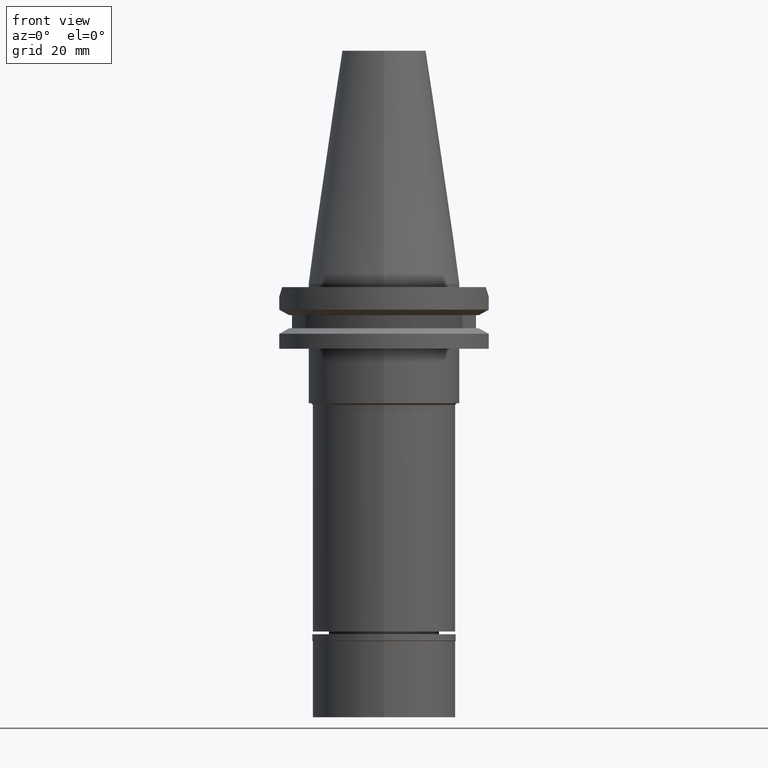
[diagram: clean part render]
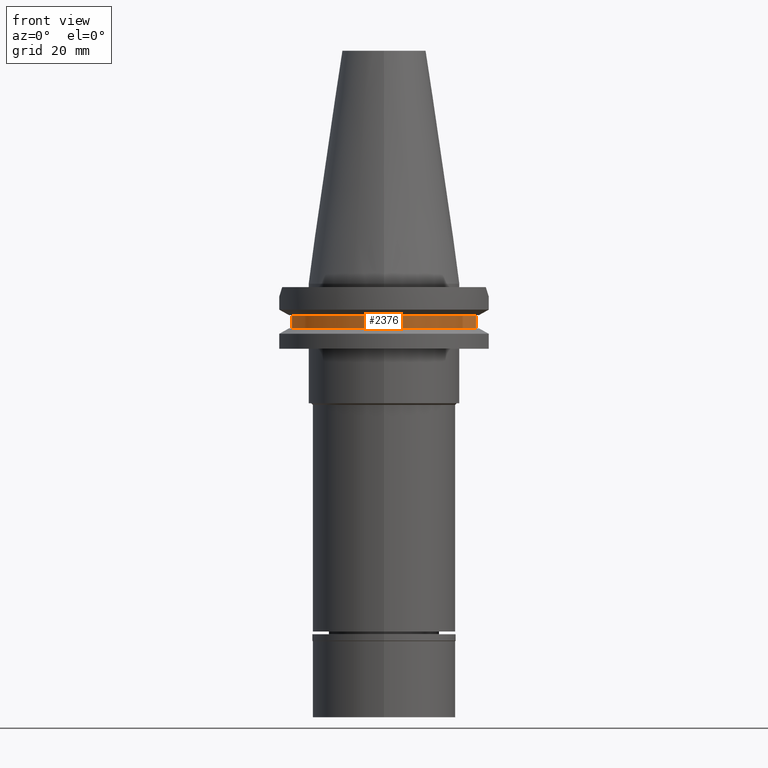
[diagram: same view with one face highlighted and labeled with its STEP entity id]
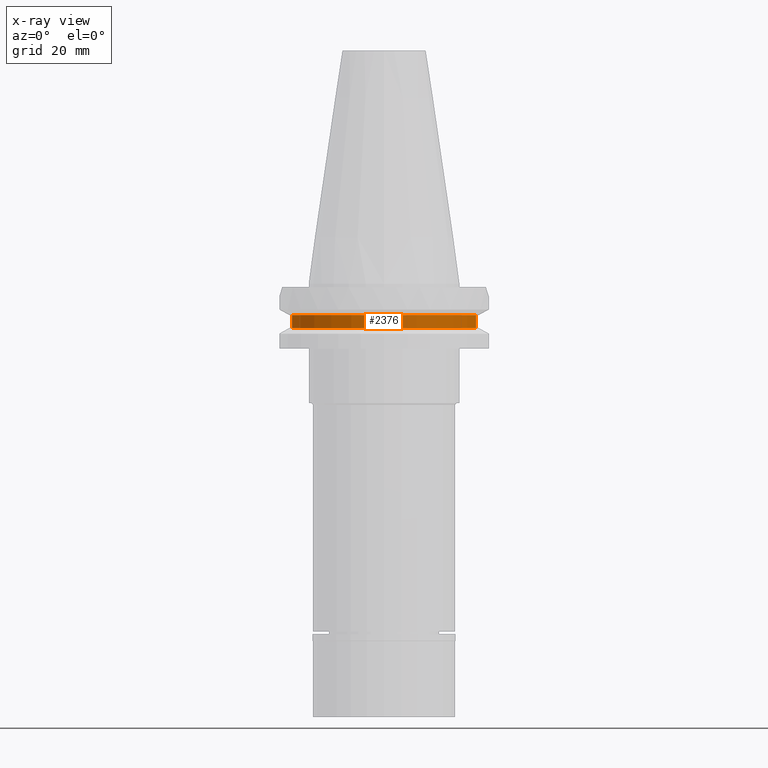
[diagram: x-ray of the same camera — body ghosted, the highlighted face saturated]
A machine part, front view. The second image highlights one B-rep face of the part: STEP entity #2376.
The next image is the same camera in x-ray: the body ghosted, the highlighted face saturated — about 0% of this face is hidden behind the body in this view.
In plain terms, the highlighted cylindrical surface (partial cylindrical patch) has radius 28.18 mm, axis along (0, 0, -1).
Its self-contained STEP definition (entity closure, byte-faithful):
#7 = CARTESIAN_POINT ( 'NONE',  ( 26.96361066326000255, -8.189999999999999503, -9.207499999999999574 ) ) ;
#206 = VERTEX_POINT ( 'NONE', #1682 ) ;
#235 = AXIS2_PLACEMENT_3D ( 'NONE', #2970, #708, #1714 ) ;
#248 = CARTESIAN_POINT ( 'NONE',  ( 0.0000000000000000000, 2.175431957834999696E-14, -9.207499999999999574 ) ) ;
#491 = ORIENTED_EDGE ( 'NONE', *, *, #1583, .T. ) ;
#562 = AXIS2_PLACEMENT_3D ( 'NONE', #2854, #1599, #2608 ) ;
#623 = EDGE_CURVE ( 'NONE', #2875, #3290, #3096, .T. ) ;
#708 = DIRECTION ( 'NONE',  ( 0.0000000000000000000, 0.0000000000000000000, -1.000000000000000000 ) ) ;
#796 = DIRECTION ( 'NONE',  ( 0.0000000000000000000, 0.0000000000000000000, -1.000000000000000000 ) ) ;
#980 = AXIS2_PLACEMENT_3D ( 'NONE', #248, #1319, #1054 ) ;
#1054 = DIRECTION ( 'NONE',  ( 0.0000000000000000000, -1.000000000000000000, 0.0000000000000000000 ) ) ;
#1071 = VERTEX_POINT ( 'NONE', #1719 ) ;
#1110 = CARTESIAN_POINT ( 'NONE',  ( -26.96361066326000255, -8.189999999999999503, -13.04749999999999943 ) ) ;
#1192 = CARTESIAN_POINT ( 'NONE',  ( -26.96361066326000255, -8.189999999999999503, -13.04749999999999943 ) ) ;
#1199 = CYLINDRICAL_SURFACE ( 'NONE', #235, 28.17999999999999972 ) ;
#1251 = VECTOR ( 'NONE', #796, 1000.000000000000000 ) ;
#1274 = EDGE_CURVE ( 'NONE', #1071, #3290, #2400, .T. ) ;
#1319 = DIRECTION ( 'NONE',  ( 0.0000000000000000000, 0.0000000000000000000, -1.000000000000000000 ) ) ;
#1461 = ORIENTED_EDGE ( 'NONE', *, *, #623, .F. ) ;
#1556 = CARTESIAN_POINT ( 'NONE',  ( -26.96361066326000255, -8.189999999999999503, -9.207499999999999574 ) ) ;
#1583 = EDGE_CURVE ( 'NONE', #2875, #206, #2355, .T. ) ;
#1599 = DIRECTION ( 'NONE',  ( 0.0000000000000000000, 0.0000000000000000000, 1.000000000000000000 ) ) ;
#1669 = ORIENTED_EDGE ( 'NONE', *, *, #1274, .T. ) ;
#1682 = CARTESIAN_POINT ( 'NONE',  ( 26.96361066326000255, -8.189999999999999503, -13.04749999999999943 ) ) ;
#1714 = DIRECTION ( 'NONE',  ( 0.0000000000000000000, -1.000000000000000000, 0.0000000000000000000 ) ) ;
#1719 = CARTESIAN_POINT ( 'NONE',  ( 26.96361066326000255, -8.189999999999999503, -9.207499999999999574 ) ) ;
#1950 = EDGE_CURVE ( 'NONE', #1071, #206, #2078, .T. ) ;
#2078 = LINE ( 'NONE', #7, #1251 ) ;
#2186 = EDGE_LOOP ( 'NONE', ( #3232, #1669, #1461, #491 ) ) ;
#2355 = CIRCLE ( 'NONE', #562, 28.17999999999999616 ) ;
#2376 = ADVANCED_FACE ( 'NONE', ( #2461 ), #1199, .T. ) ;
#2400 = CIRCLE ( 'NONE', #980, 28.17999999999999972 ) ;
#2461 = FACE_OUTER_BOUND ( 'NONE', #2186, .T. ) ;
#2608 = DIRECTION ( 'NONE',  ( -0.9568350128907829877, -0.2906316536550950236, 0.0000000000000000000 ) ) ;
#2854 = CARTESIAN_POINT ( 'NONE',  ( 0.0000000000000000000, 2.175431957834999696E-14, -13.04749999999999943 ) ) ;
#2875 = VERTEX_POINT ( 'NONE', #1192 ) ;
#2886 = VECTOR ( 'NONE', #3078, 1000.000000000000000 ) ;
#2970 = CARTESIAN_POINT ( 'NONE',  ( 0.0000000000000000000, 2.175431957834999696E-14, 77.63750000000000284 ) ) ;
#3078 = DIRECTION ( 'NONE',  ( 0.0000000000000000000, 0.0000000000000000000, 1.000000000000000000 ) ) ;
#3096 = LINE ( 'NONE', #1110, #2886 ) ;
#3232 = ORIENTED_EDGE ( 'NONE', *, *, #1950, .F. ) ;
#3290 = VERTEX_POINT ( 'NONE', #1556 ) ;